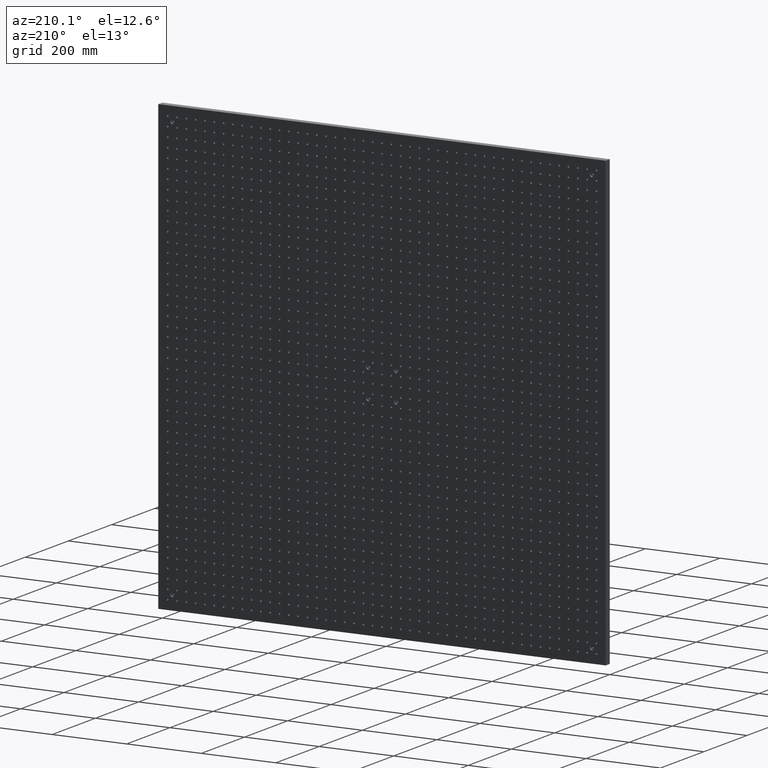
[diagram: clean part render]
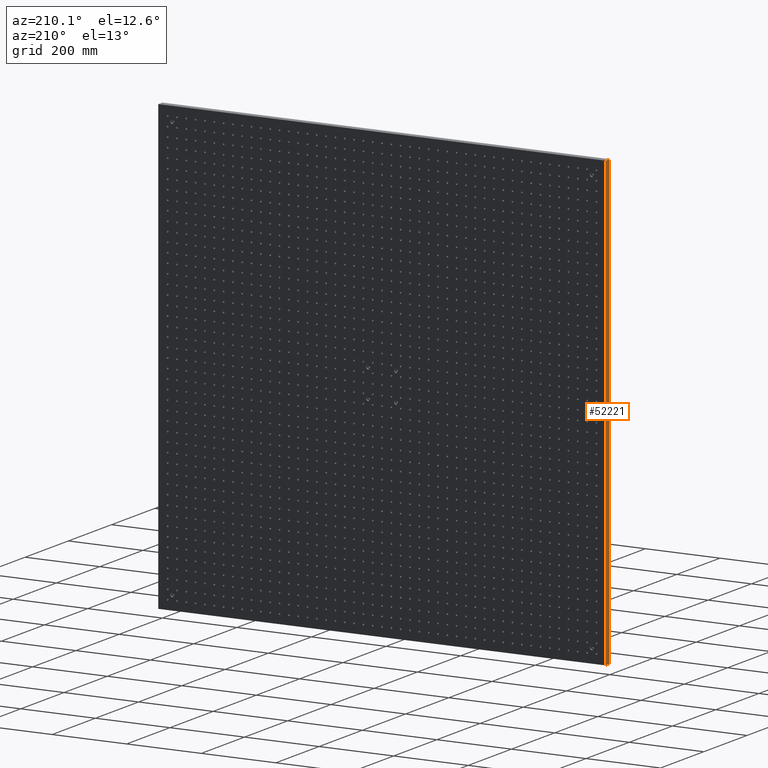
[diagram: same view with one face highlighted and labeled with its STEP entity id]
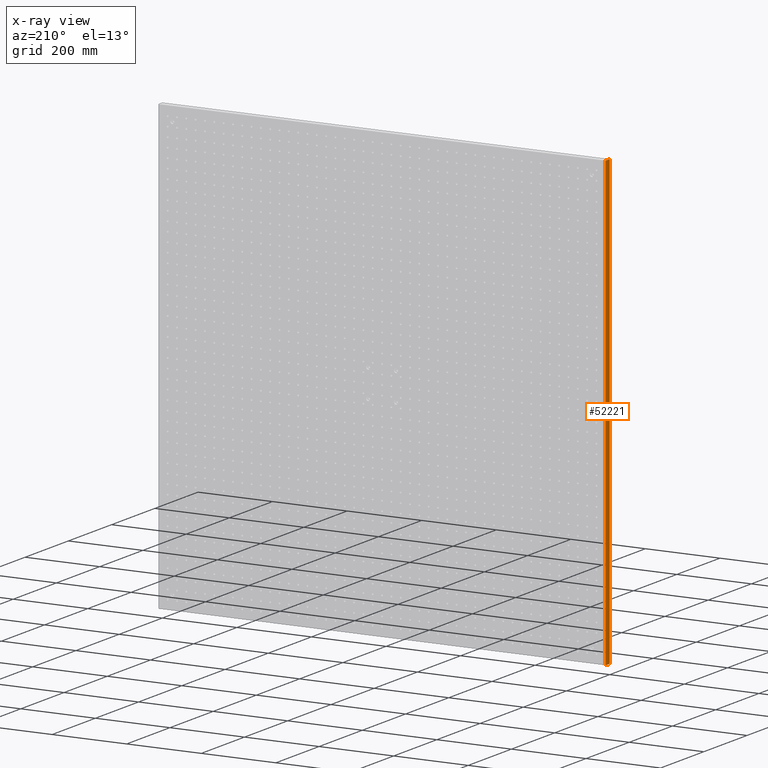
[diagram: x-ray of the same camera — body ghosted, the highlighted face saturated]
A machine part, auxiliary view. The second image highlights one B-rep face of the part: STEP entity #52221.
The next image is the same camera in x-ray: the body ghosted, the highlighted face saturated — about 0% of this face is hidden behind the body in this view.
In plain terms, the highlighted planar face has unit normal (1, 0, -0).
Its self-contained STEP definition (entity closure, byte-faithful):
#1311 = CARTESIAN_POINT ( 'NONE',  ( -600.0000000000000000, 19.00000000000000000, -599.9999999999998863 ) ) ;
#5614 = ORIENTED_EDGE ( 'NONE', *, *, #23850, .F. ) ;
#8808 = DIRECTION ( 'NONE',  ( 0.000000000000000000, -0.000000000000000000, 1.000000000000000000 ) ) ;
#11385 = VECTOR ( 'NONE', #62346, 1000.000000000000000 ) ;
#11472 = VERTEX_POINT ( 'NONE', #33190 ) ;
#16581 = ORIENTED_EDGE ( 'NONE', *, *, #17084, .T. ) ;
#17084 = EDGE_CURVE ( 'NONE', #52888, #11472, #54381, .T. ) ;
#19733 = PLANE ( 'NONE',  #66210 ) ;
#20490 = FACE_OUTER_BOUND ( 'NONE', #69899, .T. ) ;
#21347 = CARTESIAN_POINT ( 'NONE',  ( -599.9999999999998863, 19.00000000000000000, 600.0000000000001137 ) ) ;
#21745 = CARTESIAN_POINT ( 'NONE',  ( -599.9999999999998863, 19.00000000000000000, 600.0000000000001137 ) ) ;
#23850 = EDGE_CURVE ( 'NONE', #52888, #39492, #43539, .T. ) ;
#25017 = CARTESIAN_POINT ( 'NONE',  ( -600.0000000000000000, 0.000000000000000000, -599.9999999999998863 ) ) ;
#30631 = CARTESIAN_POINT ( 'NONE',  ( -600.0000000000000000, 0.000000000000000000, -599.9999999999998863 ) ) ;
#30985 = VECTOR ( 'NONE', #8808, 1000.000000000000000 ) ;
#31626 = CARTESIAN_POINT ( 'NONE',  ( -600.0000000000000000, 19.00000000000000000, -599.9999999999998863 ) ) ;
#32449 = CARTESIAN_POINT ( 'NONE',  ( -600.0000000000000000, 19.00000000000000000, -599.9999999999998863 ) ) ;
#33190 = CARTESIAN_POINT ( 'NONE',  ( -599.9999999999998863, 0.000000000000000000, 600.0000000000001137 ) ) ;
#33602 = LINE ( 'NONE', #21347, #11385 ) ;
#37372 = DIRECTION ( 'NONE',  ( 1.000000000000000000, 0.000000000000000000, -9.251858538542972814E-17 ) ) ;
#37968 = CARTESIAN_POINT ( 'NONE',  ( -600.0000000000000000, 19.00000000000000000, 0.000000000000000000 ) ) ;
#38939 = DIRECTION ( 'NONE',  ( 0.000000000000000000, 1.000000000000000000, 0.000000000000000000 ) ) ;
#39492 = VERTEX_POINT ( 'NONE', #1311 ) ;
#40422 = ORIENTED_EDGE ( 'NONE', *, *, #46107, .F. ) ;
#42360 = ORIENTED_EDGE ( 'NONE', *, *, #65884, .T. ) ;
#43327 = LINE ( 'NONE', #37968, #30985 ) ;
#43539 = LINE ( 'NONE', #32449, #43878 ) ;
#43878 = VECTOR ( 'NONE', #38939, 1000.000000000000000 ) ;
#46107 = EDGE_CURVE ( 'NONE', #39492, #69427, #43327, .T. ) ;
#48602 = DIRECTION ( 'NONE',  ( 9.251858538542972814E-17, -0.000000000000000000, 1.000000000000000000 ) ) ;
#50885 = VECTOR ( 'NONE', #48602, 1000.000000000000000 ) ;
#52221 = ADVANCED_FACE ( 'NONE', ( #20490 ), #19733, .F. ) ;
#52888 = VERTEX_POINT ( 'NONE', #25017 ) ;
#54381 = LINE ( 'NONE', #30631, #50885 ) ;
#54610 = DIRECTION ( 'NONE',  ( -9.251858538542972814E-17, 0.000000000000000000, -1.000000000000000000 ) ) ;
#62346 = DIRECTION ( 'NONE',  ( 0.000000000000000000, 1.000000000000000000, 0.000000000000000000 ) ) ;
#65884 = EDGE_CURVE ( 'NONE', #11472, #69427, #33602, .T. ) ;
#66210 = AXIS2_PLACEMENT_3D ( 'NONE', #31626, #37372, #54610 ) ;
#69427 = VERTEX_POINT ( 'NONE', #21745 ) ;
#69899 = EDGE_LOOP ( 'NONE', ( #42360, #40422, #5614, #16581 ) ) ;